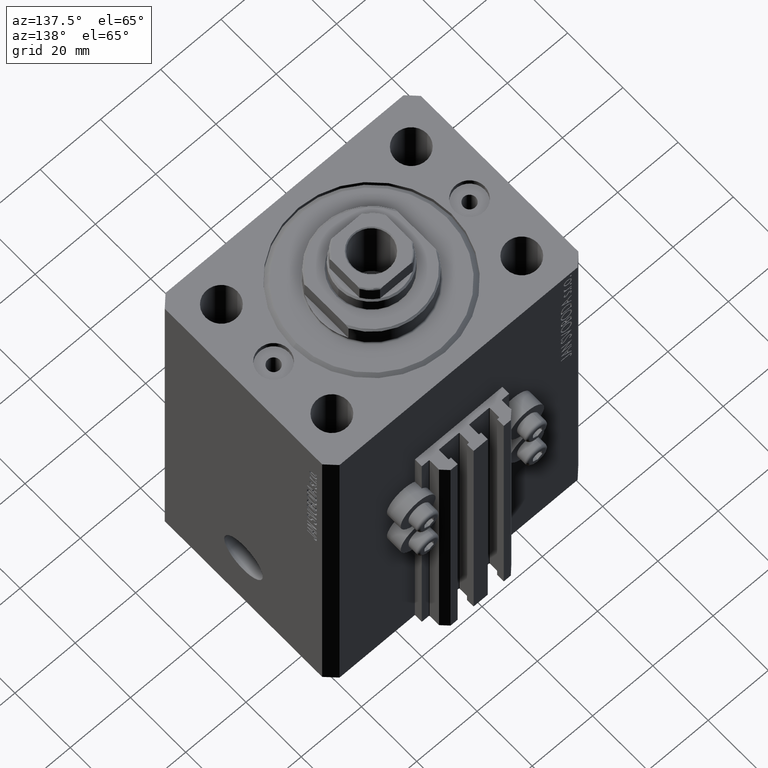
[diagram: clean part render]
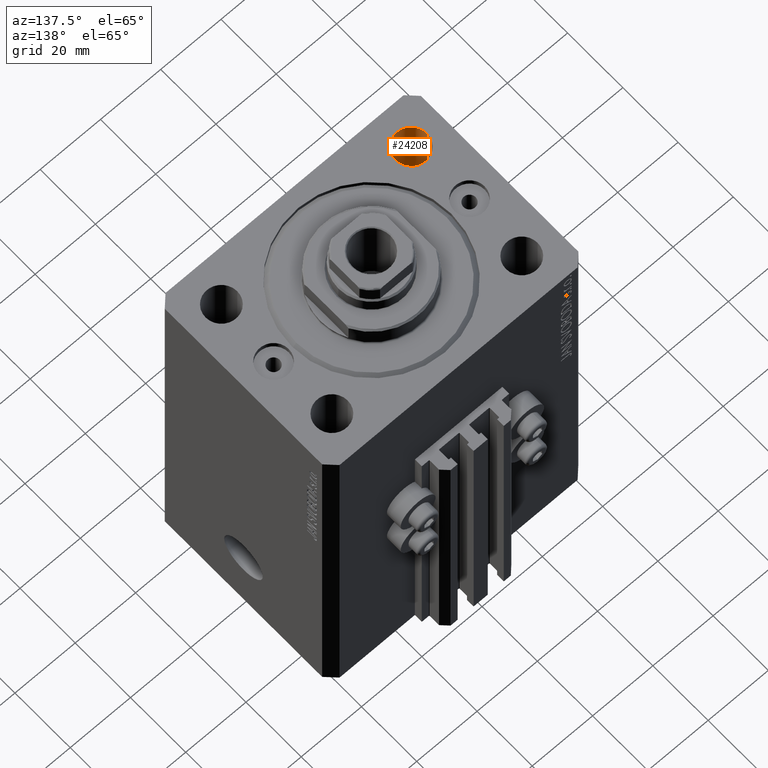
[diagram: same view with one face highlighted and labeled with its STEP entity id]
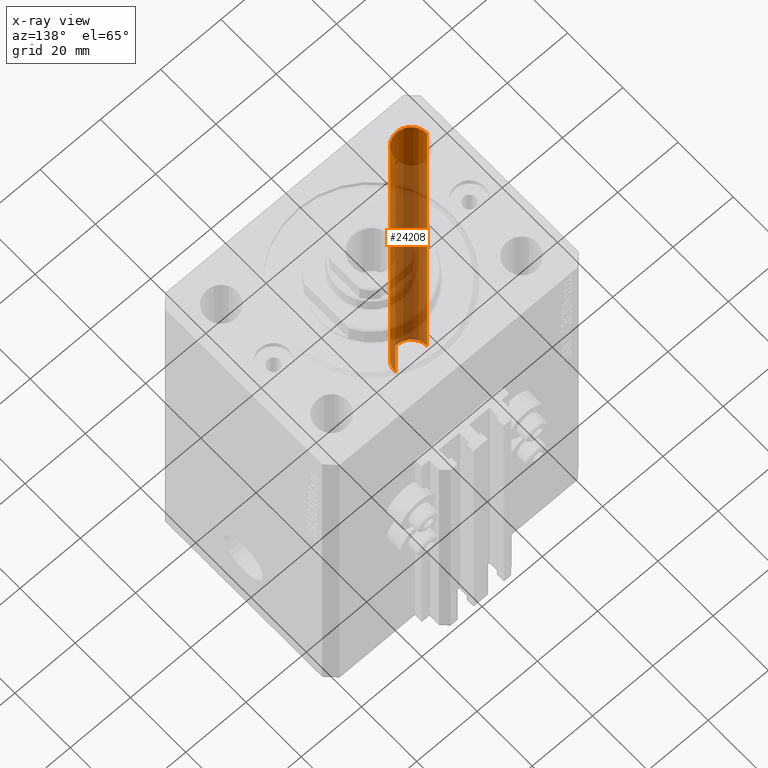
[diagram: x-ray of the same camera — body ghosted, the highlighted face saturated]
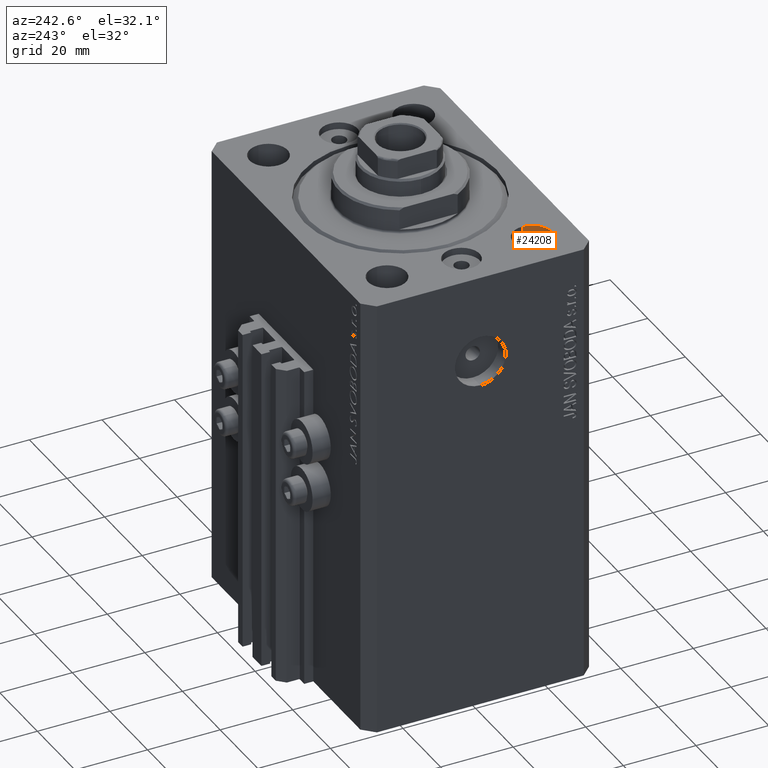
[diagram: same view with one face highlighted and labeled with its STEP entity id]
A machine part, auxiliary view. The second image highlights one B-rep face of the part: STEP entity #24208.
The next image is the same camera in x-ray: the body ghosted, the highlighted face saturated — about 83% of this face is hidden behind the body in this view.
A second angle (auxiliary view) of the same face is appended — the face is thin or edge-on in the first view.
In plain terms, the highlighted cylindrical surface (edge-blend (fillet) strip) has radius 5.25 mm, axis along (0, 0, 1).
Its self-contained STEP definition (entity closure, byte-faithful):
#284 = DIRECTION ( 'NONE',  ( -0.000000000000000000, -0.000000000000000000, 1.000000000000000000 ) ) ;
#580 = CIRCLE ( 'NONE', #22705, 5.250000000000000888 ) ;
#1400 = VERTEX_POINT ( 'NONE', #20583 ) ;
#2607 = VERTEX_POINT ( 'NONE', #29572 ) ;
#5450 = CARTESIAN_POINT ( 'NONE',  ( -26.24999999999999289, -20.00000000000000355, 0.000000000000000000 ) ) ;
#7822 = ORIENTED_EDGE ( 'NONE', *, *, #19912, .F. ) ;
#11000 = DIRECTION ( 'NONE',  ( -0.000000000000000000, -0.000000000000000000, 1.000000000000000000 ) ) ;
#11770 = CARTESIAN_POINT ( 'NONE',  ( -31.49999999999999289, -20.00000000000000355, -123.0000000000000000 ) ) ;
#12678 = AXIS2_PLACEMENT_3D ( 'NONE', #43704, #11000, #43463 ) ;
#12790 = ORIENTED_EDGE ( 'NONE', *, *, #46104, .T. ) ;
#13558 = DIRECTION ( 'NONE',  ( -0.000000000000000000, -0.000000000000000000, 1.000000000000000000 ) ) ;
#14122 = VECTOR ( 'NONE', #284, 1000.000000000000000 ) ;
#14818 = CYLINDRICAL_SURFACE ( 'NONE', #12678, 5.250000000000000888 ) ;
#15797 = CARTESIAN_POINT ( 'NONE',  ( -26.24999999999999289, -20.00000000000000355, -137.8492424049174758 ) ) ;
#18007 = AXIS2_PLACEMENT_3D ( 'NONE', #36964, #36504, #21943 ) ;
#18449 = LINE ( 'NONE', #15797, #14122 ) ;
#19912 = EDGE_CURVE ( 'NONE', #1400, #35502, #18449, .T. ) ;
#20583 = CARTESIAN_POINT ( 'NONE',  ( -26.24999999999999289, -20.00000000000000355, -123.0000000000000000 ) ) ;
#21943 = DIRECTION ( 'NONE',  ( 1.000000000000000000, 0.000000000000000000, 0.000000000000000000 ) ) ;
#22705 = AXIS2_PLACEMENT_3D ( 'NONE', #11770, #30611, #40439 ) ;
#24208 = ADVANCED_FACE ( 'NONE', ( #43935 ), #14818, .F. ) ;
#24867 = CIRCLE ( 'NONE', #18007, 5.250000000000000888 ) ;
#27976 = VERTEX_POINT ( 'NONE', #43587 ) ;
#27989 = EDGE_LOOP ( 'NONE', ( #12790, #30230, #39954, #7822 ) ) ;
#28596 = LINE ( 'NONE', #46017, #32101 ) ;
#29572 = CARTESIAN_POINT ( 'NONE',  ( -36.74999999999999289, -20.00000000000000355, -123.0000000000000000 ) ) ;
#30230 = ORIENTED_EDGE ( 'NONE', *, *, #35545, .T. ) ;
#30611 = DIRECTION ( 'NONE',  ( -0.000000000000000000, -0.000000000000000000, -1.000000000000000000 ) ) ;
#32101 = VECTOR ( 'NONE', #13558, 1000.000000000000000 ) ;
#35502 = VERTEX_POINT ( 'NONE', #5450 ) ;
#35545 = EDGE_CURVE ( 'NONE', #2607, #27976, #28596, .T. ) ;
#36504 = DIRECTION ( 'NONE',  ( 0.000000000000000000, 0.000000000000000000, 1.000000000000000000 ) ) ;
#36964 = CARTESIAN_POINT ( 'NONE',  ( -31.49999999999999289, -20.00000000000000355, 0.000000000000000000 ) ) ;
#39954 = ORIENTED_EDGE ( 'NONE', *, *, #43710, .T. ) ;
#40439 = DIRECTION ( 'NONE',  ( 1.000000000000000000, 0.000000000000000000, 0.000000000000000000 ) ) ;
#43463 = DIRECTION ( 'NONE',  ( 1.000000000000000000, 0.000000000000000000, 0.000000000000000000 ) ) ;
#43587 = CARTESIAN_POINT ( 'NONE',  ( -36.74999999999999289, -20.00000000000000355, 0.000000000000000000 ) ) ;
#43704 = CARTESIAN_POINT ( 'NONE',  ( -31.49999999999999289, -20.00000000000000355, -137.8492424049174758 ) ) ;
#43710 = EDGE_CURVE ( 'NONE', #27976, #35502, #24867, .T. ) ;
#43935 = FACE_OUTER_BOUND ( 'NONE', #27989, .T. ) ;
#46017 = CARTESIAN_POINT ( 'NONE',  ( -36.74999999999999289, -20.00000000000000355, -137.8492424049174758 ) ) ;
#46104 = EDGE_CURVE ( 'NONE', #1400, #2607, #580, .T. ) ;